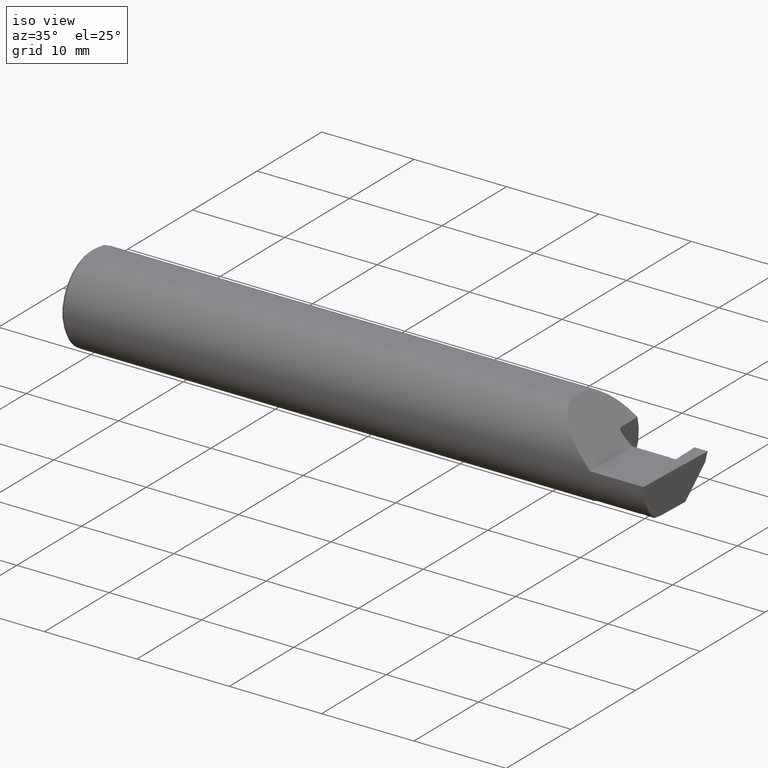
[diagram: clean part render]
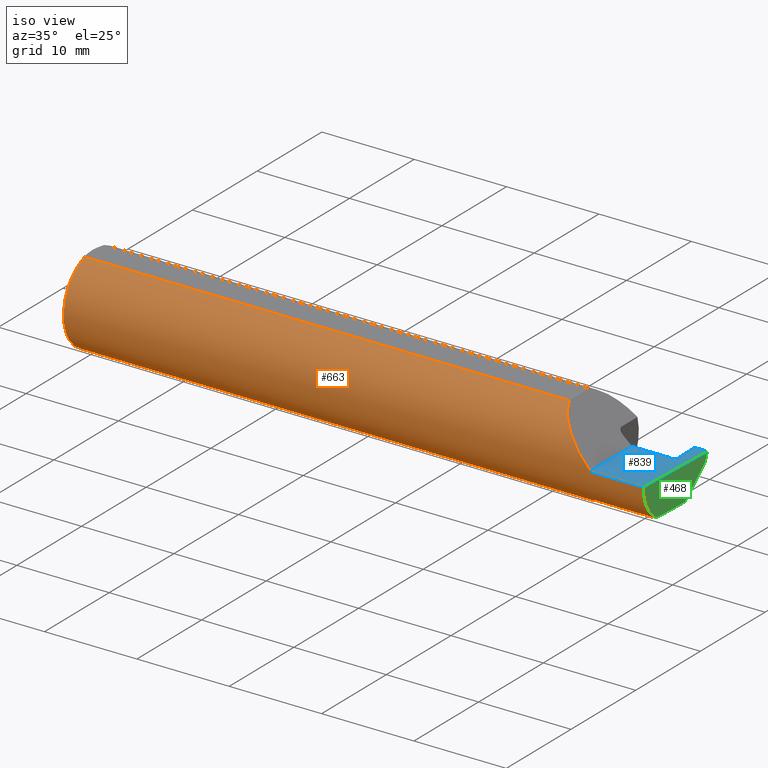
[diagram: same view with three faces highlighted in distinct colors, each labeled with its STEP entity id]
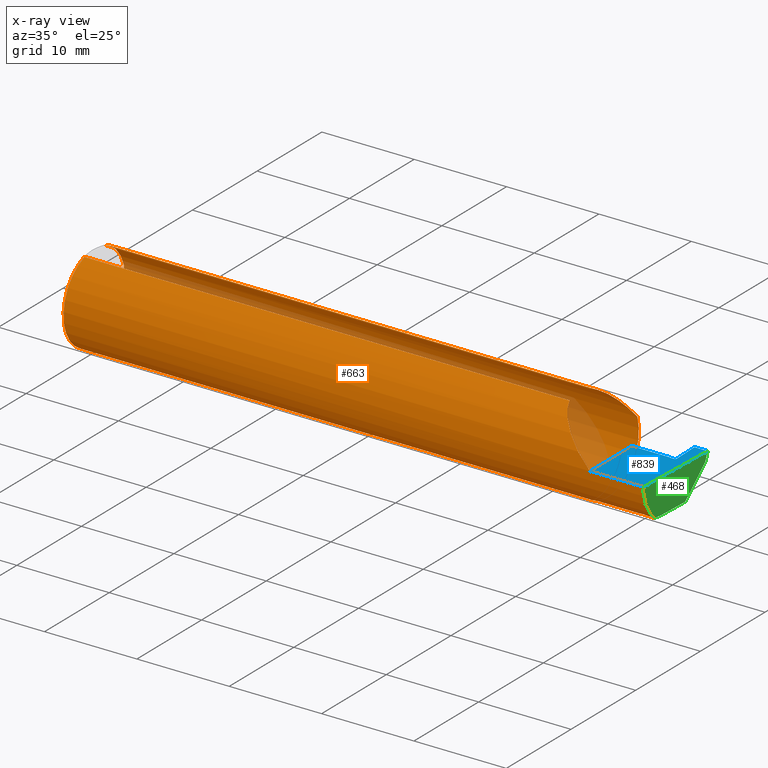
[diagram: x-ray of the same camera — body ghosted, the three highlighted faces saturated]
A machine part, iso view with three faces highlighted in distinct colors.
The next image is the same camera in x-ray (body ghosted, the three faces saturated) — at least one of them is partly hidden behind the body in this view.
Their STEP definitions:

[orange] entity #663 — the highlighted cylindrical surface (partial cylindrical patch) has radius 4.7587 mm, axis along (-1, -0, -0).
#8 = ORIENTED_EDGE ( 'NONE', *, *, #560, .F. ) ;
#17 = VERTEX_POINT ( 'NONE', #93 ) ;
#22 = VECTOR ( 'NONE', #50, 39.37007874015748143 ) ;
#32 = CARTESIAN_POINT ( 'NONE',  ( 0.000000000000000000, 0.000000000000000000, 0.000000000000000000 ) ) ;
#33 = DIRECTION ( 'NONE',  ( 1.000000000000000000, 0.000000000000000000, 0.000000000000000000 ) ) ;
#37 = VERTEX_POINT ( 'NONE', #380 ) ;
#39 = DIRECTION ( 'NONE',  ( 0.000000000000000000, 0.000000000000000000, -1.000000000000000000 ) ) ;
#48 = CARTESIAN_POINT ( 'NONE',  ( 2.176950117609040891, -0.1873500000000001275, 0.08304988239095997815 ) ) ;
#50 = DIRECTION ( 'NONE',  ( -1.000000000000000000, -0.000000000000000000, -0.000000000000000000 ) ) ;
#52 = CARTESIAN_POINT ( 'NONE',  ( 2.334499999999999797, -0.1172600179964007477, -0.1461167706989302817 ) ) ;
#71 = CARTESIAN_POINT ( 'NONE',  ( 2.427647260851145905, -0.1172600179964007061, -0.1461167706989303094 ) ) ;
#84 = EDGE_CURVE ( 'NONE', #17, #693, #716, .T. ) ;
#93 = CARTESIAN_POINT ( 'NONE',  ( 2.260000000000000231, -0.1873499999999999888, 2.939152317953647352E-17 ) ) ;
#96 = B_SPLINE_CURVE_WITH_KNOTS ( 'NONE', 3,
 ( #648, #509, #792, #150, #810, #533, #666, #165, #238, #889 ),
 .UNSPECIFIED., .F., .F.,
 ( 4, 3, 3, 4 ),
 ( 1.393189244890212689E-17, 0.0001077215141513441474, 0.0002693037975399365782, 0.0004308860927659723204 ),
 .UNSPECIFIED. ) ;
#97 = CARTESIAN_POINT ( 'NONE',  ( 2.211304331342287988, -0.1022198306720691757, -0.1570962426853818317 ) ) ;
#101 = CARTESIAN_POINT ( 'NONE',  ( 2.220028532764138252, -0.1137241120808236000, -0.1488947809299402958 ) ) ;
#106 = CARTESIAN_POINT ( 'NONE',  ( 2.218203859946834555, -0.1120371980050638844, -0.1501764597936558476 ) ) ;
#113 = AXIS2_PLACEMENT_3D ( 'NONE', #432, #715, #366 ) ;
#116 = CARTESIAN_POINT ( 'NONE',  ( 2.487009473749072441, -0.1873499999999999055, 0.000000000000000000 ) ) ;
#127 = AXIS2_PLACEMENT_3D ( 'NONE', #829, #350, #775 ) ;
#141 = CARTESIAN_POINT ( 'NONE',  ( 2.447211118896980508, -0.1210449020109016921, -0.1429970773740948942 ) ) ;
#145 = CARTESIAN_POINT ( 'NONE',  ( 2.229999999999999982, -0.1172600179964006922, -0.1461167706989302817 ) ) ;
#150 = CARTESIAN_POINT ( 'NONE',  ( 2.441709548055253087, -0.1207156342425846213, -0.1432751135033943357 ) ) ;
#153 = VERTEX_POINT ( 'NONE', #220 ) ;
#162 = ORIENTED_EDGE ( 'NONE', *, *, #574, .F. ) ;
#165 = CARTESIAN_POINT ( 'NONE',  ( 2.433253561409998600, -0.1202072007494127959, -0.1437020493321447545 ) ) ;
#170 = CARTESIAN_POINT ( 'NONE',  ( 2.224511795768553846, -0.1163687266324235220, -0.1468371510166788241 ) ) ;
#174 = CARTESIAN_POINT ( 'NONE',  ( 0.01499999999999999944, -0.06039039658753697637, 0.1773499999999999799 ) ) ;
#175 = CARTESIAN_POINT ( 'NONE',  ( 2.205000000000000071, 0.000000000000000000, 0.000000000000000000 ) ) ;
#179 = CARTESIAN_POINT ( 'NONE',  ( 2.213439486659307676, -0.1064616213911158960, -0.1542305641651499637 ) ) ;
#181 = EDGE_CURVE ( 'NONE', #438, #153, #861, .T. ) ;
#188 = AXIS2_PLACEMENT_3D ( 'NONE', #175, #33, #39 ) ;
#189 = ORIENTED_EDGE ( 'NONE', *, *, #798, .T. ) ;
#196 = CARTESIAN_POINT ( 'NONE',  ( 2.485494735025390867, -0.1873500000000000443, -0.05781030015605120170 ) ) ;
#200 = DIRECTION ( 'NONE',  ( -1.000000000000000000, -0.000000000000000000, -0.000000000000000000 ) ) ;
#202 = VERTEX_POINT ( 'NONE', #811 ) ;
#213 = EDGE_CURVE ( 'NONE', #344, #37, #785, .T. ) ;
#214 = CARTESIAN_POINT ( 'NONE',  ( 2.429025632386660583, -0.1199517158066738254, -0.1439152819370999037 ) ) ;
#220 = CARTESIAN_POINT ( 'NONE',  ( 2.445937596161425365, -0.1209687695218782666, -0.1430614528807906960 ) ) ;
#223 = CARTESIAN_POINT ( 'NONE',  ( 2.082650000000001445, 0.06039039658753697637, 0.1773499999999999799 ) ) ;
#224 = EDGE_CURVE ( 'NONE', #558, #344, #907, .T. ) ;
#235 = VECTOR ( 'NONE', #608, 39.37007874015748143 ) ;
#238 = CARTESIAN_POINT ( 'NONE',  ( 2.431139589740594520, -0.1200795990372901106, -0.1438086927498444523 ) ) ;
#248 = CYLINDRICAL_SURFACE ( 'NONE', #667, 0.1873499999999999888 ) ;
#251 = CIRCLE ( 'NONE', #127, 0.1873499999999999888 ) ;
#256 = ORIENTED_EDGE ( 'NONE', *, *, #815, .T. ) ;
#276 = CARTESIAN_POINT ( 'NONE',  ( 2.082650000000001445, -0.06039039658753699025, 0.1773499999999999799 ) ) ;
#280 = LINE ( 'NONE', #52, #625 ) ;
#285 = EDGE_CURVE ( 'NONE', #665, #630, #251, .T. ) ;
#291 = CARTESIAN_POINT ( 'NONE',  ( 2.450071708900211309, -0.1190227893687353794, -0.1446874979439517206 ) ) ;
#302 = CARTESIAN_POINT ( 'NONE',  ( 2.451191799767825419, -0.1172600179964006922, -0.1461167706989303094 ) ) ;
#309 = CARTESIAN_POINT ( 'NONE',  ( 0.01499999999999756042, 0.06039039658754215278, 0.1773499999999999799 ) ) ;
#310 = CARTESIAN_POINT ( 'NONE',  ( 2.205000000000000071, -0.06851976604679065053, -0.1743704796142198643 ) ) ;
#323 = EDGE_CURVE ( 'NONE', #901, #558, #280, .T. ) ;
#324 = DIRECTION ( 'NONE',  ( 0.000000000000000000, 0.000000000000000000, 1.000000000000000000 ) ) ;
#336 = ORIENTED_EDGE ( 'NONE', *, *, #705, .F. ) ;
#338 = DIRECTION ( 'NONE',  ( 1.000000000000000000, 0.000000000000000000, 0.000000000000000000 ) ) ;
#344 = VERTEX_POINT ( 'NONE', #695 ) ;
#350 = DIRECTION ( 'NONE',  ( -1.000000000000000000, -0.000000000000000000, -0.000000000000000000 ) ) ;
#364 = ORIENTED_EDGE ( 'NONE', *, *, #377, .F. ) ;
#366 = DIRECTION ( 'NONE',  ( 0.000000000000000000, 0.000000000000000000, 1.000000000000000000 ) ) ;
#377 = EDGE_CURVE ( 'NONE', #621, #693, #691, .T. ) ;
#380 = CARTESIAN_POINT ( 'NONE',  ( 2.205000000000000071, 0.1790950097015547027, 0.05500000000000044437 ) ) ;
#388 = B_SPLINE_CURVE_WITH_KNOTS ( 'NONE', 3,
 ( #214, #781, #860, #652 ),
 .UNSPECIFIED., .F., .F.,
 ( 4, 4 ),
 ( 4.944722691628275482E-18, 9.500698411875204373E-05 ),
 .UNSPECIFIED. ) ;
#392 = EDGE_CURVE ( 'NONE', #660, #476, #557, .T. ) ;
#398 = CARTESIAN_POINT ( 'NONE',  ( 2.207960551809340810, -0.09317341542745750937, -0.1626248379125196930 ) ) ;
#402 = CARTESIAN_POINT ( 'NONE',  ( 2.082650000000001445, 0.06039039658753697637, 0.1773499999999999799 ) ) ;
#424 =( BOUNDED_CURVE ( )  B_SPLINE_CURVE ( 3, ( #402, #581, #639, #431 ),
 .UNSPECIFIED., .F., .F. ) 
 B_SPLINE_CURVE_WITH_KNOTS ( ( 4, 4 ),
 ( 0.3282003792178449508, 1.272838961666674873 ),
 .UNSPECIFIED. ) 
 CURVE ( )  GEOMETRIC_REPRESENTATION_ITEM ( )  RATIONAL_B_SPLINE_CURVE ( ( 1.000000000000000000, 0.9270103440186696631, 0.9270103440186696631, 1.000000000000000000 ) ) 
 REPRESENTATION_ITEM ( '' )  );
#428 = CARTESIAN_POINT ( 'NONE',  ( 2.487009473749072441, -0.1873499999999999055, 0.000000000000000000 ) ) ;
#429 = CARTESIAN_POINT ( 'NONE',  ( 2.445937596161425365, -0.1209687695218782666, -0.1430614528807906960 ) ) ;
#431 = CARTESIAN_POINT ( 'NONE',  ( 2.205000000000000071, 0.1790950097015547027, 0.05500000000000044437 ) ) ;
#432 = CARTESIAN_POINT ( 'NONE',  ( 0.01499999999999999944, 0.000000000000000000, 0.000000000000000000 ) ) ;
#438 = VERTEX_POINT ( 'NONE', #302 ) ;
#457 = CIRCLE ( 'NONE', #113, 0.1873499999999999888 ) ;
#460 = CARTESIAN_POINT ( 'NONE',  ( 0.01499999999999999944, 0.000000000000000000, -0.1873499999999999888 ) ) ;
#466 = CARTESIAN_POINT ( 'NONE',  ( 2.205358271039144391, -0.07873626113568084339, -0.1700887912276896619 ) ) ;
#471 = CARTESIAN_POINT ( 'NONE',  ( 2.485628535317038867, -0.1172600179964007477, -0.1461167706989302817 ) ) ;
#476 = VERTEX_POINT ( 'NONE', #428 ) ;
#479 = CARTESIAN_POINT ( 'NONE',  ( 2.260000000000000231, -0.1873499999999999888, 2.939152317953647352E-17 ) ) ;
#483 = CARTESIAN_POINT ( 'NONE',  ( 2.109420298020488804, -0.1390074056189584684, 0.1505797019795120650 ) ) ;
#502 = LINE ( 'NONE', #571, #595 ) ;
#509 = CARTESIAN_POINT ( 'NONE',  ( 2.444528240385034579, -0.1208845165661996957, -0.1431326948273232980 ) ) ;
#519 = LINE ( 'NONE', #741, #235 ) ;
#532 = ORIENTED_EDGE ( 'NONE', *, *, #213, .F. ) ;
#533 = CARTESIAN_POINT ( 'NONE',  ( 2.437481533252171761, -0.1204618404460228720, -0.1434886584041424606 ) ) ;
#537 = ORIENTED_EDGE ( 'NONE', *, *, #323, .F. ) ;
#541 = VERTEX_POINT ( 'NONE', #223 ) ;
#555 = LINE ( 'NONE', #765, #22 ) ;
#557 =( BOUNDED_CURVE ( )  B_SPLINE_CURVE ( 3, ( #471, #835, #196, #116 ),
 .UNSPECIFIED., .F., .F. ) 
 B_SPLINE_CURVE_WITH_KNOTS ( ( 4, 4 ),
 ( 6.032366188922103412, 6.926893589830550368 ),
 .UNSPECIFIED. ) 
 CURVE ( )  GEOMETRIC_REPRESENTATION_ITEM ( )  RATIONAL_B_SPLINE_CURVE ( ( 1.000000000000000000, 0.9344226172588803170, 0.9344226172588803170, 1.000000000000000000 ) ) 
 REPRESENTATION_ITEM ( '' )  );
#558 = VERTEX_POINT ( 'NONE', #145 ) ;
#560 = EDGE_CURVE ( 'NONE', #630, #621, #457, .T. ) ;
#571 = CARTESIAN_POINT ( 'NONE',  ( 3.749399456654646757E-32, -0.1873499999999999888, 3.061616997868384127E-16 ) ) ;
#574 = EDGE_CURVE ( 'NONE', #153, #202, #96, .T. ) ;
#581 = CARTESIAN_POINT ( 'NONE',  ( 2.102408703912463483, 0.1184162804513036737, 0.1575912960875374691 ) ) ;
#595 = VECTOR ( 'NONE', #791, 39.37007874015748143 ) ;
#608 = DIRECTION ( 'NONE',  ( -1.000000000000000000, -0.000000000000000000, -0.000000000000000000 ) ) ;
#621 = VERTEX_POINT ( 'NONE', #174 ) ;
#625 = VECTOR ( 'NONE', #200, 39.37007874015748143 ) ;
#630 = VERTEX_POINT ( 'NONE', #460 ) ;
#639 = CARTESIAN_POINT ( 'NONE',  ( 2.146403178835508463, 0.1610999512718552795, 0.1135968211644918235 ) ) ;
#641 = CARTESIAN_POINT ( 'NONE',  ( 2.451191799767825419, -0.1172600179964006922, -0.1461167706989303094 ) ) ;
#645 = ORIENTED_EDGE ( 'NONE', *, *, #392, .T. ) ;
#648 = CARTESIAN_POINT ( 'NONE',  ( 2.445937596161425365, -0.1209687695218782666, -0.1430614528807906960 ) ) ;
#651 = EDGE_CURVE ( 'NONE', #660, #438, #519, .T. ) ;
#652 = CARTESIAN_POINT ( 'NONE',  ( 2.427647260851145905, -0.1172600179964007061, -0.1461167706989303094 ) ) ;
#660 = VERTEX_POINT ( 'NONE', #662 ) ;
#662 = CARTESIAN_POINT ( 'NONE',  ( 2.485628535317038867, -0.1172600179964007477, -0.1461167706989302817 ) ) ;
#663 = ADVANCED_FACE ( 'NONE', ( #884 ), #248, .T. ) ;
#665 = VERTEX_POINT ( 'NONE', #309 ) ;
#666 = CARTESIAN_POINT ( 'NONE',  ( 2.435367547408517019, -0.1203345206023813396, -0.1435953538642355254 ) ) ;
#667 = AXIS2_PLACEMENT_3D ( 'NONE', #32, #751, #324 ) ;
#673 = ORIENTED_EDGE ( 'NONE', *, *, #224, .F. ) ;
#681 = CARTESIAN_POINT ( 'NONE',  ( 2.204999999999999627, -0.07368234487347197215, -0.1723418180300748115 ) ) ;
#689 = ORIENTED_EDGE ( 'NONE', *, *, #181, .F. ) ;
#691 = LINE ( 'NONE', #703, #709 ) ;
#693 = VERTEX_POINT ( 'NONE', #871 ) ;
#695 = CARTESIAN_POINT ( 'NONE',  ( 2.205000000000000071, -0.06851976604679065053, -0.1743704796142198643 ) ) ;
#703 = CARTESIAN_POINT ( 'NONE',  ( 0.000000000000000000, -0.06039039658753697637, 0.1773499999999999799 ) ) ;
#705 = EDGE_CURVE ( 'NONE', #541, #665, #555, .T. ) ;
#709 = VECTOR ( 'NONE', #338, 39.37007874015748143 ) ;
#715 = DIRECTION ( 'NONE',  ( -1.000000000000000000, -0.000000000000000000, -0.000000000000000000 ) ) ;
#716 =( BOUNDED_CURVE ( )  B_SPLINE_CURVE ( 3, ( #479, #48, #483, #276 ),
 .UNSPECIFIED., .F., .F. ) 
 B_SPLINE_CURVE_WITH_KNOTS ( ( 4, 4 ),
 ( 4.712388980384688786, 5.954984927961740837 ),
 .UNSPECIFIED. ) 
 CURVE ( )  GEOMETRIC_REPRESENTATION_ITEM ( )  RATIONAL_B_SPLINE_CURVE ( ( 1.000000000000000000, 0.8754157352537689230, 0.8754157352537689230, 1.000000000000000000 ) ) 
 REPRESENTATION_ITEM ( '' )  );
#723 = ORIENTED_EDGE ( 'NONE', *, *, #285, .F. ) ;
#741 = CARTESIAN_POINT ( 'NONE',  ( 2.334499999999999797, -0.1172600179964007477, -0.1461167706989302817 ) ) ;
#751 = DIRECTION ( 'NONE',  ( -1.000000000000000000, -0.000000000000000000, -0.000000000000000000 ) ) ;
#765 = CARTESIAN_POINT ( 'NONE',  ( 0.000000000000000000, 0.06039039658753697637, 0.1773499999999999799 ) ) ;
#775 = DIRECTION ( 'NONE',  ( 0.000000000000000000, 0.000000000000000000, 1.000000000000000000 ) ) ;
#781 = CARTESIAN_POINT ( 'NONE',  ( 2.428567406358855596, -0.1190609576996923685, -0.1446577184724209264 ) ) ;
#783 = CARTESIAN_POINT ( 'NONE',  ( 2.448382007790244064, -0.1204607716139673157, -0.1434925048654562552 ) ) ;
#784 = ORIENTED_EDGE ( 'NONE', *, *, #873, .F. ) ;
#785 = CIRCLE ( 'NONE', #188, 0.1873499999999999888 ) ;
#791 = DIRECTION ( 'NONE',  ( -1.000000000000000000, -0.000000000000000000, -0.000000000000000000 ) ) ;
#792 = CARTESIAN_POINT ( 'NONE',  ( 2.443118891017411087, -0.1208001381097835586, -0.1432039152493819190 ) ) ;
#798 = EDGE_CURVE ( 'NONE', #541, #37, #424, .T. ) ;
#810 = CARTESIAN_POINT ( 'NONE',  ( 2.439595533463657873, -0.1205888784328906921, -0.1433819108919077989 ) ) ;
#811 = CARTESIAN_POINT ( 'NONE',  ( 2.429025632386660583, -0.1199517158066738254, -0.1439152819370999037 ) ) ;
#813 = ORIENTED_EDGE ( 'NONE', *, *, #651, .F. ) ;
#815 = EDGE_CURVE ( 'NONE', #476, #17, #502, .T. ) ;
#817 = EDGE_LOOP ( 'NONE', ( #813, #645, #256, #827, #364, #8, #723, #336, #189, #532, #673, #537, #784, #162, #689 ) ) ;
#821 = CARTESIAN_POINT ( 'NONE',  ( 2.229999999999999982, -0.1172600179964006922, -0.1461167706989302817 ) ) ;
#827 = ORIENTED_EDGE ( 'NONE', *, *, #84, .T. ) ;
#829 = CARTESIAN_POINT ( 'NONE',  ( 0.01499999999999999944, 0.000000000000000000, 0.000000000000000000 ) ) ;
#835 = CARTESIAN_POINT ( 'NONE',  ( 2.485002117657001186, -0.1623470442677541481, -0.1099340280425338545 ) ) ;
#860 = CARTESIAN_POINT ( 'NONE',  ( 2.428107891671471119, -0.1181636587484606038, -0.1453915908968995696 ) ) ;
#861 = B_SPLINE_CURVE_WITH_KNOTS ( 'NONE', 3,
 ( #641, #926, #291, #783, #141, #429 ),
 .UNSPECIFIED., .F., .F.,
 ( 4, 2, 4 ),
 ( 0.0002908273715209136012, 0.0003847775289457168631, 0.0004787276863705201249 ),
 .UNSPECIFIED. ) ;
#871 = CARTESIAN_POINT ( 'NONE',  ( 2.082650000000001445, -0.06039039658753699025, 0.1773499999999999799 ) ) ;
#873 = EDGE_CURVE ( 'NONE', #202, #901, #388, .T. ) ;
#878 = CARTESIAN_POINT ( 'NONE',  ( 2.206843912362378646, -0.08846956905169091334, -0.1652353808078972641 ) ) ;
#884 = FACE_OUTER_BOUND ( 'NONE', #817, .T. ) ;
#889 = CARTESIAN_POINT ( 'NONE',  ( 2.429025632386660583, -0.1199517158066738254, -0.1439152819370999037 ) ) ;
#890 = CARTESIAN_POINT ( 'NONE',  ( 2.227174967710399134, -0.1172600179964007061, -0.1461167706989302539 ) ) ;
#901 = VERTEX_POINT ( 'NONE', #71 ) ;
#907 = B_SPLINE_CURVE_WITH_KNOTS ( 'NONE', 3,
 ( #821, #890, #170, #101, #106, #179, #97, #398, #878, #466, #681, #310 ),
 .UNSPECIFIED., .F., .F.,
 ( 4, 2, 2, 2, 2, 4 ),
 ( 1.967976973658592312E-07, 0.0002120314145722278145, 0.0004238660314470897345, 0.0008475352651968003472, 0.001271204498946511014, 0.001694873732696221573 ),
 .UNSPECIFIED. ) ;
#926 = CARTESIAN_POINT ( 'NONE',  ( 2.450688798580827665, -0.1181608706206767057, -0.1453938283944335719 ) ) ;

[blue] entity #839 — the highlighted planar face has unit normal (-0, 0, -1).
#17 = VERTEX_POINT ( 'NONE', #93 ) ;
#51 = VECTOR ( 'NONE', #227, 39.37007874015748143 ) ;
#54 = EDGE_CURVE ( 'NONE', #507, #476, #489, .T. ) ;
#56 = CARTESIAN_POINT ( 'NONE',  ( 2.424000000002080490, 0.06465000000018368553, -2.978593497808336554E-11 ) ) ;
#61 = CARTESIAN_POINT ( 'NONE',  ( 2.424000000002080490, 0.06465000000018368553, -2.978593497808336554E-11 ) ) ;
#62 = CARTESIAN_POINT ( 'NONE',  ( 2.500000000000000000, -0.2000000000000000111, 0.000000000000000000 ) ) ;
#70 = ORIENTED_EDGE ( 'NONE', *, *, #75, .T. ) ;
#74 =( BOUNDED_CURVE ( )  B_SPLINE_CURVE ( 3, ( #334, #131, #270, #412 ),
 .UNSPECIFIED., .F., .F. ) 
 B_SPLINE_CURVE_WITH_KNOTS ( ( 4, 4 ),
 ( 4.336808689942017736E-19, 0.0002839584297238196327 ),
 .UNSPECIFIED. ) 
 CURVE ( )  GEOMETRIC_REPRESENTATION_ITEM ( )  RATIONAL_B_SPLINE_CURVE ( ( 1.000000000000000000, 0.7964389136393329460, 0.7964389136393329460, 1.000000000000000000 ) ) 
 REPRESENTATION_ITEM ( '' )  );
#75 = EDGE_CURVE ( 'NONE', #198, #769, #818, .T. ) ;
#82 = B_SPLINE_CURVE_WITH_KNOTS ( 'NONE', 1,
 ( #877, #594 ),
 .UNSPECIFIED., .F., .F.,
 ( 2, 2 ),
 ( 0.000000000000000000, 7.184204899423672175E-05 ),
 .UNSPECIFIED. ) ;
#93 = CARTESIAN_POINT ( 'NONE',  ( 2.260000000000000231, -0.1873499999999999888, 2.939152317953647352E-17 ) ) ;
#131 = CARTESIAN_POINT ( 'NONE',  ( 2.448084614202334475, 0.06768195317418509993, -3.532233362438553999E-11 ) ) ;
#198 = VERTEX_POINT ( 'NONE', #529 ) ;
#207 = DIRECTION ( 'NONE',  ( -0.03489949670249478664, -0.9993908270190959842, 0.000000000000000000 ) ) ;
#212 = EDGE_CURVE ( 'NONE', #517, #617, #576, .T. ) ;
#227 = DIRECTION ( 'NONE',  ( -0.000000000000000000, 1.000000000000000000, -0.000000000000000000 ) ) ;
#245 = ORIENTED_EDGE ( 'NONE', *, *, #735, .F. ) ;
#270 = CARTESIAN_POINT ( 'NONE',  ( 2.445156691056197928, 0.06464999999995516000, -3.469872397286341638E-11 ) ) ;
#274 = DIRECTION ( 'NONE',  ( 1.000000000000000000, 0.000000000000000000, 0.000000000000000000 ) ) ;
#290 = CARTESIAN_POINT ( 'NONE',  ( 2.260000000000000231, 0.06664999999999998703, 2.939152317953647352E-17 ) ) ;
#292 = DIRECTION ( 'NONE',  ( -1.000000000000000000, 0.000000000000000000, 1.224646799147353700E-16 ) ) ;
#311 = EDGE_CURVE ( 'NONE', #617, #198, #74, .T. ) ;
#327 = VECTOR ( 'NONE', #694, 39.37007874015748143 ) ;
#332 = ORIENTED_EDGE ( 'NONE', *, *, #54, .F. ) ;
#334 = CARTESIAN_POINT ( 'NONE',  ( 2.447937515934124342, 0.07189429647678804991, -3.602839889991554399E-11 ) ) ;
#341 = CARTESIAN_POINT ( 'NONE',  ( 2.205000000000000071, 0.06665000000000001479, 3.612708057484693206E-17 ) ) ;
#361 = FACE_OUTER_BOUND ( 'NONE', #843, .T. ) ;
#374 = ORIENTED_EDGE ( 'NONE', *, *, #212, .T. ) ;
#396 = ORIENTED_EDGE ( 'NONE', *, *, #311, .T. ) ;
#397 = LINE ( 'NONE', #838, #327 ) ;
#406 = LINE ( 'NONE', #341, #553 ) ;
#412 = CARTESIAN_POINT ( 'NONE',  ( 2.440941780145714279, 0.06464999999996083602, -4.637551913535229762E-11 ) ) ;
#428 = CARTESIAN_POINT ( 'NONE',  ( 2.487009473749072441, -0.1873499999999999055, 0.000000000000000000 ) ) ;
#435 = LINE ( 'NONE', #720, #51 ) ;
#436 = CARTESIAN_POINT ( 'NONE',  ( 2.500000000000000000, 0.1846500000000000363, 0.000000000000000000 ) ) ;
#440 = CARTESIAN_POINT ( 'NONE',  ( 2.443999999986549820, 0.1846500000000000363, -3.367778697655196529E-19 ) ) ;
#451 = CARTESIAN_POINT ( 'NONE',  ( 2.447937515934124342, 0.07189429647678804991, -3.602839889991554399E-11 ) ) ;
#453 = VERTEX_POINT ( 'NONE', #499 ) ;
#476 = VERTEX_POINT ( 'NONE', #428 ) ;
#489 = LINE ( 'NONE', #836, #637 ) ;
#498 = DIRECTION ( 'NONE',  ( -1.224646799147353700E-16, 0.000000000000000000, -1.000000000000000000 ) ) ;
#499 = CARTESIAN_POINT ( 'NONE',  ( 2.422000000000233300, 0.06664999999976645162, 8.581691664019148845E-18 ) ) ;
#502 = LINE ( 'NONE', #571, #595 ) ;
#507 = VERTEX_POINT ( 'NONE', #436 ) ;
#517 = VERTEX_POINT ( 'NONE', #440 ) ;
#522 = VERTEX_POINT ( 'NONE', #290 ) ;
#529 = CARTESIAN_POINT ( 'NONE',  ( 2.440941780145714279, 0.06464999999996083602, -4.637551913535229762E-11 ) ) ;
#549 = ORIENTED_EDGE ( 'NONE', *, *, #743, .F. ) ;
#553 = VECTOR ( 'NONE', #274, 39.37007874015748143 ) ;
#571 = CARTESIAN_POINT ( 'NONE',  ( 3.749399456654646757E-32, -0.1873499999999999888, 3.061616997868384127E-16 ) ) ;
#576 = B_SPLINE_CURVE_WITH_KNOTS ( 'NONE', 1,
 ( #600, #882 ),
 .UNSPECIFIED., .F., .F.,
 ( 2, 2 ),
 ( 6.214901063768139146E-15, 0.002865740601254499614 ),
 .UNSPECIFIED. ) ;
#594 = CARTESIAN_POINT ( 'NONE',  ( 2.422000000000233300, 0.06664999999976645162, 8.581691664019148845E-18 ) ) ;
#595 = VECTOR ( 'NONE', #791, 39.37007874015748143 ) ;
#600 = CARTESIAN_POINT ( 'NONE',  ( 2.443999999986549820, 0.1846500000000000363, -3.367778697655196529E-19 ) ) ;
#617 = VERTEX_POINT ( 'NONE', #451 ) ;
#637 = VECTOR ( 'NONE', #207, 39.37007874015748854 ) ;
#650 = ORIENTED_EDGE ( 'NONE', *, *, #916, .F. ) ;
#656 = ORIENTED_EDGE ( 'NONE', *, *, #669, .T. ) ;
#669 = EDGE_CURVE ( 'NONE', #769, #453, #82, .T. ) ;
#694 = DIRECTION ( 'NONE',  ( 1.000000000000000000, -0.000000000000000000, -0.000000000000000000 ) ) ;
#704 = CARTESIAN_POINT ( 'NONE',  ( 2.440941780145714279, 0.06464999999996083602, -4.637551913535229762E-11 ) ) ;
#720 = CARTESIAN_POINT ( 'NONE',  ( 2.260000000000000231, -0.2000000000000000111, 2.939152317953647352E-17 ) ) ;
#728 = ORIENTED_EDGE ( 'NONE', *, *, #815, .F. ) ;
#735 = EDGE_CURVE ( 'NONE', #517, #507, #397, .T. ) ;
#743 = EDGE_CURVE ( 'NONE', #522, #453, #406, .T. ) ;
#769 = VERTEX_POINT ( 'NONE', #56 ) ;
#791 = DIRECTION ( 'NONE',  ( -1.000000000000000000, -0.000000000000000000, -0.000000000000000000 ) ) ;
#815 = EDGE_CURVE ( 'NONE', #476, #17, #502, .T. ) ;
#818 = B_SPLINE_CURVE_WITH_KNOTS ( 'NONE', 1,
 ( #704, #61 ),
 .UNSPECIFIED., .F., .F.,
 ( 2, 2 ),
 ( 0.000000000000000000, 0.0004303212156482952300 ),
 .UNSPECIFIED. ) ;
#836 = CARTESIAN_POINT ( 'NONE',  ( 2.500000000000000000, 0.1846500000000000363, 0.000000000000000000 ) ) ;
#838 = CARTESIAN_POINT ( 'NONE',  ( 2.399999999999999911, 0.1846500000000000363, -3.367778697655196529E-19 ) ) ;
#839 = ADVANCED_FACE ( 'NONE', ( #361 ), #850, .F. ) ;
#843 = EDGE_LOOP ( 'NONE', ( #728, #332, #245, #374, #396, #70, #656, #549, #650 ) ) ;
#850 = PLANE ( 'NONE',  #905 ) ;
#877 = CARTESIAN_POINT ( 'NONE',  ( 2.424000000002080490, 0.06465000000018368553, -2.978593497808336554E-11 ) ) ;
#882 = CARTESIAN_POINT ( 'NONE',  ( 2.447937515934124342, 0.07189429647678804991, -3.602839889991554399E-11 ) ) ;
#905 = AXIS2_PLACEMENT_3D ( 'NONE', #62, #498, #292 ) ;
#916 = EDGE_CURVE ( 'NONE', #17, #522, #435, .T. ) ;

[green] entity #468 — the highlighted planar face has unit normal (-0.999, 0.0349, 0.0262).
#54 = EDGE_CURVE ( 'NONE', #507, #476, #489, .T. ) ;
#60 = CARTESIAN_POINT ( 'NONE',  ( 2.491727426418679059, 0.06030305154314919563, -0.1499999999999999944 ) ) ;
#72 = LINE ( 'NONE', #924, #283 ) ;
#77 = CARTESIAN_POINT ( 'NONE',  ( 2.486710951318955587, -0.08334999999999997966, -0.1499999999999999944 ) ) ;
#110 = CARTESIAN_POINT ( 'NONE',  ( 2.498573163503173156, 0.1723030515431495657, -0.03799999999999999212 ) ) ;
#111 = CARTESIAN_POINT ( 'NONE',  ( 2.486710951318955587, -0.08334999999999997966, -0.1499999999999999944 ) ) ;
#116 = CARTESIAN_POINT ( 'NONE',  ( 2.487009473749072441, -0.1873499999999999055, 0.000000000000000000 ) ) ;
#140 = DIRECTION ( 'NONE',  ( -0.9990483607430193924, 0.03488753751660920999, 0.02617694830787320806 ) ) ;
#155 = DIRECTION ( 'NONE',  ( -0.03489949670249477970, -0.9993908270190959842, 0.000000000000000000 ) ) ;
#173 =( BOUNDED_CURVE ( )  B_SPLINE_CURVE ( 3, ( #296, #710, #575, #77 ),
 .UNSPECIFIED., .F., .T. ) 
 B_SPLINE_CURVE_WITH_KNOTS ( ( 4, 4 ),
 ( 0.6990500090944880007, 0.9270880441439325326 ),
 .UNSPECIFIED. ) 
 CURVE ( )  GEOMETRIC_REPRESENTATION_ITEM ( )  RATIONAL_B_SPLINE_CURVE ( ( 1.000000000000000000, 0.9956712472009929815, 0.9956712472009929815, 1.000000000000000000 ) ) 
 REPRESENTATION_ITEM ( '' )  );
#177 = ORIENTED_EDGE ( 'NONE', *, *, #54, .T. ) ;
#196 = CARTESIAN_POINT ( 'NONE',  ( 2.485494735025390867, -0.1873500000000000443, -0.05781030015605120170 ) ) ;
#207 = DIRECTION ( 'NONE',  ( -0.03489949670249478664, -0.9993908270190959842, 0.000000000000000000 ) ) ;
#234 = EDGE_CURVE ( 'NONE', #507, #737, #752, .T. ) ;
#236 = VERTEX_POINT ( 'NONE', #111 ) ;
#277 = ORIENTED_EDGE ( 'NONE', *, *, #516, .F. ) ;
#283 = VECTOR ( 'NONE', #721, 39.37007874015748854 ) ;
#296 = CARTESIAN_POINT ( 'NONE',  ( 2.485628535317038867, -0.1172600179964007477, -0.1461167706989302817 ) ) ;
#340 = VERTEX_POINT ( 'NONE', #60 ) ;
#353 = VECTOR ( 'NONE', #736, 39.37007874015748143 ) ;
#367 = AXIS2_PLACEMENT_3D ( 'NONE', #640, #140, #155 ) ;
#392 = EDGE_CURVE ( 'NONE', #660, #476, #557, .T. ) ;
#394 = CARTESIAN_POINT ( 'NONE',  ( 2.499872637845352408, 0.1835478877661963770, -0.003391952678096913417 ) ) ;
#414 = VECTOR ( 'NONE', #422, 39.37007874015748143 ) ;
#422 = DIRECTION ( 'NONE',  ( -0.04317993108638582683, -0.7064472710512009757, -0.7064472710511987552 ) ) ;
#428 = CARTESIAN_POINT ( 'NONE',  ( 2.487009473749072441, -0.1873499999999999055, 0.000000000000000000 ) ) ;
#436 = CARTESIAN_POINT ( 'NONE',  ( 2.500000000000000000, 0.1846500000000000363, 0.000000000000000000 ) ) ;
#468 = ADVANCED_FACE ( 'NONE', ( #866 ), #782, .F. ) ;
#469 = ORIENTED_EDGE ( 'NONE', *, *, #234, .F. ) ;
#471 = CARTESIAN_POINT ( 'NONE',  ( 2.485628535317038867, -0.1172600179964007477, -0.1461167706989302817 ) ) ;
#476 = VERTEX_POINT ( 'NONE', #428 ) ;
#488 = EDGE_CURVE ( 'NONE', #737, #340, #796, .T. ) ;
#489 = LINE ( 'NONE', #836, #637 ) ;
#507 = VERTEX_POINT ( 'NONE', #436 ) ;
#516 = EDGE_CURVE ( 'NONE', #340, #236, #72, .T. ) ;
#542 = EDGE_LOOP ( 'NONE', ( #719, #277, #819, #469, #177, #579 ) ) ;
#557 =( BOUNDED_CURVE ( )  B_SPLINE_CURVE ( 3, ( #471, #835, #196, #116 ),
 .UNSPECIFIED., .F., .F. ) 
 B_SPLINE_CURVE_WITH_KNOTS ( ( 4, 4 ),
 ( 6.032366188922103412, 6.926893589830550368 ),
 .UNSPECIFIED. ) 
 CURVE ( )  GEOMETRIC_REPRESENTATION_ITEM ( )  RATIONAL_B_SPLINE_CURVE ( ( 1.000000000000000000, 0.9344226172588803170, 0.9344226172588803170, 1.000000000000000000 ) ) 
 REPRESENTATION_ITEM ( '' )  );
#575 = CARTESIAN_POINT ( 'NONE',  ( 2.486311922989707490, -0.09477667630339417504, -0.1499999999999999944 ) ) ;
#579 = ORIENTED_EDGE ( 'NONE', *, *, #392, .F. ) ;
#637 = VECTOR ( 'NONE', #207, 39.37007874015748854 ) ;
#640 = CARTESIAN_POINT ( 'NONE',  ( 2.500000000000000000, 0.1846500000000000363, 0.000000000000000000 ) ) ;
#660 = VERTEX_POINT ( 'NONE', #662 ) ;
#662 = CARTESIAN_POINT ( 'NONE',  ( 2.485628535317038867, -0.1172600179964007477, -0.1461167706989302817 ) ) ;
#710 = CARTESIAN_POINT ( 'NONE',  ( 2.485949549028435790, -0.1061291577212409298, -0.1486999626928445783 ) ) ;
#719 = ORIENTED_EDGE ( 'NONE', *, *, #867, .T. ) ;
#721 = DIRECTION ( 'NONE',  ( -0.03489949670249477970, -0.9993908270190959842, 0.000000000000000000 ) ) ;
#736 = DIRECTION ( 'NONE',  ( -0.03568783471266506746, -0.3088201463263676727, -0.9504506802967118695 ) ) ;
#737 = VERTEX_POINT ( 'NONE', #110 ) ;
#752 = LINE ( 'NONE', #394, #353 ) ;
#782 = PLANE ( 'NONE',  #367 ) ;
#796 = LINE ( 'NONE', #920, #414 ) ;
#819 = ORIENTED_EDGE ( 'NONE', *, *, #488, .F. ) ;
#835 = CARTESIAN_POINT ( 'NONE',  ( 2.485002117657001186, -0.1623470442677541481, -0.1099340280425338545 ) ) ;
#836 = CARTESIAN_POINT ( 'NONE',  ( 2.500000000000000000, 0.1846500000000000363, 0.000000000000000000 ) ) ;
#866 = FACE_OUTER_BOUND ( 'NONE', #542, .T. ) ;
#867 = EDGE_CURVE ( 'NONE', #660, #236, #173, .T. ) ;
#920 = CARTESIAN_POINT ( 'NONE',  ( 2.498389373204160435, 0.1692961418071499968, -0.04100690973599954714 ) ) ;
#924 = CARTESIAN_POINT ( 'NONE',  ( 2.493549313964080305, 0.1124750847462631514, -0.1499999999999999944 ) ) ;